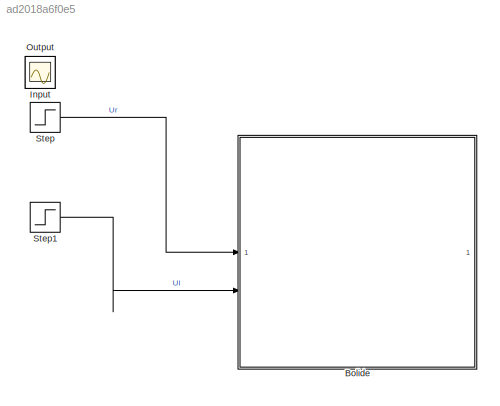
MODEL slx_ad2018a6f0e5
KIND model
CONFIG AbsTol = auto
CONFIG EnableMultiTasking = off
CONFIG FixedStep = auto
CONFIG MaxStep = auto
CONFIG MinStep = auto
CONFIG RelTol = 1e-3
CONFIG SampleTimeConstraint = Unconstrained
CONFIG SolverName = VariableStepAuto
CONFIG StartTime = 0.0
CONFIG StopTime = 7
WORKSPACE source: MATLAB code (in-file)
WORKSPACE mw = 0.1
WORKSPACE mb = 1
WORKSPACE Ms = 1.2
WORKSPACE rho = 0.07
WORKSPACE l = 0.02
WORKSPACE d = 0.015
WORKSPACE L = 2.3e-3  (= 0.0023)
WORKSPACE R = 2.2
WORKSPACE k = 0.342
WORKSPACE Iwy = 2.45e-4  (= 0.000245)
WORKSPACE Ipsi = 1.53e-2  (= 0.0153)
WORKSPACE beta = (Ms + 2*Iwy/rho^2)  (= 1.3)
WORKSPACE gamma = Ipsi + mb*d^2  (= 0.015525)
WORKSPACE alpha = 2/rho  (= 28.5714285714)
WORKSPACE eta = l/rho  (= 0.285714285714)
WORKSPACE ur = 1
WORKSPACE psir = 0
WORKSPACE Usbar = 2*k/rho*ur  (= 9.77142857143)
WORKSPACE Urbar = Usbar/2  (= 4.88571428571)
WORKSPACE Ulbar = Usbar/2  (= 4.88571428571)
WORKSPACE pbar = 0
WORKSPACE ubar = ur  (= 1)
WORKSPACE psibar = psir  (= 0)
WORKSPACE vbar = 0
WORKSPACE Isbar = 0
WORKSPACE Idbar = 0
WORKSPACE ybar = 0
WORKSPACE code: statebar = [pbar; ubar; psibar; vbar; Isbar; Idbar; ybar];
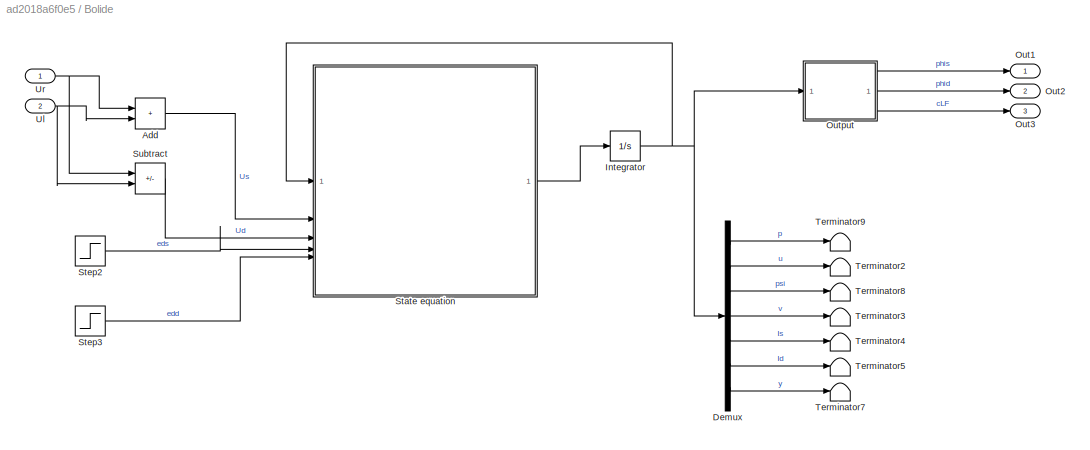
BLOCK [SubSystem] Bolide
BLOCK [Sum] Bolide/Add
  IconShape = rectangular
BLOCK [Demux] Bolide/Demux
  Outputs = 7
BLOCK [Integrator] Bolide/Integrator
  InitialCondition = statebar
BLOCK [Outport] Bolide/Out1
BLOCK [Outport] Bolide/Out2
  Port = 2
BLOCK [Outport] Bolide/Out3
  Port = 3
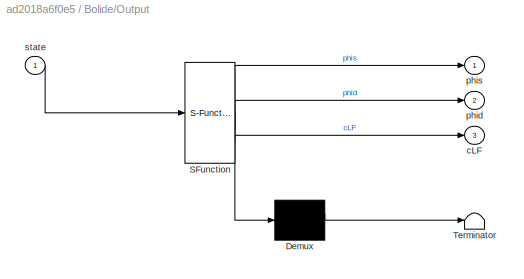
BLOCK [SubSystem] Bolide/Output
  ErrorFcn = Stateflow.Translate.translate
  PermitHierarchicalResolution = ExplicitOnly
  SFBlockType = MATLAB Function
  TreatAsAtomicUnit = on
BLOCK [Demux] Bolide/Output/ Demux 
  Outputs = 1
BLOCK [S-Function] Bolide/Output/ SFunction 
  EnableBusSupport = on
  FunctionName = sf_sfun
  Parameters = alpha,eta
  PortCounts = [1 4]
  SFcnIsStateOwnerBlock = off
  SFunctionDeploymentMode = off
  Tag = Stateflow S-Function 4
BLOCK [Terminator] Bolide/Output/ Terminator 
BLOCK [Outport] Bolide/Output/cLF
  Port = 3
BLOCK [Outport] Bolide/Output/phid
  Port = 2
BLOCK [Outport] Bolide/Output/phis
BLOCK [Inport] Bolide/Output/state
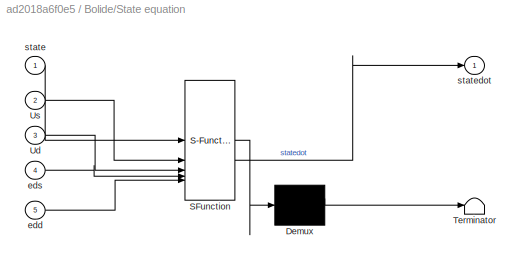
BLOCK [SubSystem] Bolide/State equation
  ErrorFcn = Stateflow.Translate.translate
  PermitHierarchicalResolution = ExplicitOnly
  SFBlockType = MATLAB Function
  TreatAsAtomicUnit = on
BLOCK [Demux] Bolide/State equation/ Demux 
  Outputs = 1
BLOCK [S-Function] Bolide/State equation/ SFunction 
  EnableBusSupport = on
  FunctionName = sf_sfun
  Parameters = L,R,beta,d,gamma,k,l,mb,rho
  PortCounts = [5 2]
  SFcnIsStateOwnerBlock = off
  SFunctionDeploymentMode = off
  Tag = Stateflow S-Function 2
BLOCK [Terminator] Bolide/State equation/ Terminator 
BLOCK [Inport] Bolide/State equation/Ud
  Port = 3
BLOCK [Inport] Bolide/State equation/Us
  Port = 2
BLOCK [Inport] Bolide/State equation/edd
  Port = 5
BLOCK [Inport] Bolide/State equation/eds
  Port = 4
BLOCK [Inport] Bolide/State equation/state
BLOCK [Outport] Bolide/State equation/statedot
BLOCK [Step] Bolide/Step2
  After = 0
  SampleTime = 0
BLOCK [Step] Bolide/Step3
  After = 0
  SampleTime = 0
BLOCK [Sum] Bolide/Subtract
  IconShape = rectangular
  Inputs = +-
BLOCK [Terminator] Bolide/Terminator2
BLOCK [Terminator] Bolide/Terminator3
BLOCK [Terminator] Bolide/Terminator4
BLOCK [Terminator] Bolide/Terminator5
BLOCK [Terminator] Bolide/Terminator7
BLOCK [Terminator] Bolide/Terminator8
BLOCK [Terminator] Bolide/Terminator9
BLOCK [Inport] Bolide/Ul
  Port = 2
BLOCK [Inport] Bolide/Ur
BLOCK [Scope] Input
  Floating = off
  IOType = viewer
  NumInputPorts = 1
  ScopeSpecificationString = Simulink.scopes.TimeScopeBlockCfg('CurrentConfiguration', extmgr.ConfigurationSet(extmgr.Configuration('Core','General UI',true),extmgr.Configuration('Core','Source UI',true),extmgr.Configuration('Sources','WiredSimulink',true,'DataLoggingVariableName','ScopeData1'),extmgr.Configuration('Visuals','Time Domain',true,'SerializedDisplays',{struct('MinYLimReal','-1.72143','MaxYLimReal','15.49286','YLa...<+2701ch>
BLOCK [Scope] Output
  Floating = off
  IOType = viewer
  NumInputPorts = 1
  ScopeSpecificationString = Simulink.scopes.TimeScopeBlockCfg('CurrentConfiguration', extmgr.ConfigurationSet(extmgr.Configuration('Core','General UI',true),extmgr.Configuration('Core','Source UI',true),extmgr.Configuration('Sources','WiredSimulink',true),extmgr.Configuration('Visuals','Time Domain',true,'SerializedDisplays',{struct('MinYLimReal','-32.22236','MaxYLimReal','290.00122','YLabelReal','','MinYLimMag','0.00000','M...<+1968ch>
BLOCK [Step] Step
  After = Urbar
  Before = Urbar
  SampleTime = 0
  Time = 2
BLOCK [Step] Step1
  After = Ulbar
  Before = Ulbar
  SampleTime = 0
  Time = 2
LINE Bolide/Add:1 -> Bolide/State equation:2
LINE Bolide/Demux:1 -> Bolide/Terminator9:1
LINE Bolide/Demux:2 -> Bolide/Terminator2:1
LINE Bolide/Demux:3 -> Bolide/Terminator8:1
LINE Bolide/Demux:4 -> Bolide/Terminator3:1
LINE Bolide/Demux:5 -> Bolide/Terminator4:1
LINE Bolide/Demux:6 -> Bolide/Terminator5:1
LINE Bolide/Demux:7 -> Bolide/Terminator7:1
NET Bolide/Integrator:1 -> Bolide/Demux:1, Bolide/Output:1, Bolide/State equation:1
LINE Bolide/Output:1 -> Bolide/Out1:1
LINE Bolide/Output:2 -> Bolide/Out2:1
LINE Bolide/Output:3 -> Bolide/Out3:1
LINE Bolide/State equation:1 -> Bolide/Integrator:1
LINE Bolide/Step2:1 -> Bolide/State equation:4
LINE Bolide/Step3:1 -> Bolide/State equation:5
LINE Bolide/Subtract:1 -> Bolide/State equation:3
NET Bolide/Ul:1 -> Bolide/Add:2, Bolide/Subtract:2
NET Bolide/Ur:1 -> Bolide/Add:1, Bolide/Subtract:1
LINE Step1:1 -> Bolide:2
LINE Step:1 -> Bolide:1
note: NET lines group one-source signal fan-out (src -> all destinations, sorted); 1:1 wires keep LINE
CHART Bolide/State equation states=1 transitions=1
  STATE_LABEL 'eML_blk_kernel()'
  STATE_LABEL 'SCRIPT:\nfunction statedot = fcn(state, Us, Ud, eds, edd, beta, gamma, rho, l, d, L, R, k, mb)\n% ed est l\'entrée de perturbation, != d (distance AC)\n% Model parameters defined in "Model Explorer/Matlab Code"\n\np = state(1); % intégrale temporelle de u, distance parcourue\nu = state(2);\npsi = state(3);\nv = state(4); % psidot\nIs = state(5); % Intensité à gauche\nId = state(6);\ny = state(7); % abscisse p...<+283ch>'
CHART Bolide/Output states=1 transitions=1
  STATE_LABEL 'eML_blk_kernel()'
  STATE_LABEL 'SCRIPT:\nfunction [phis, phid, cLF] = fcn(state,alpha,eta)\n% Sorties mesurées\n\np = state(1);\npsi = state(3);\ny = state(7);\n\nphis = alpha*p;\nphid = eta*psi;\ncLF = y;\n\n\n\n'
CHART  states=0 transitions=0
CHART  states=0 transitions=0
